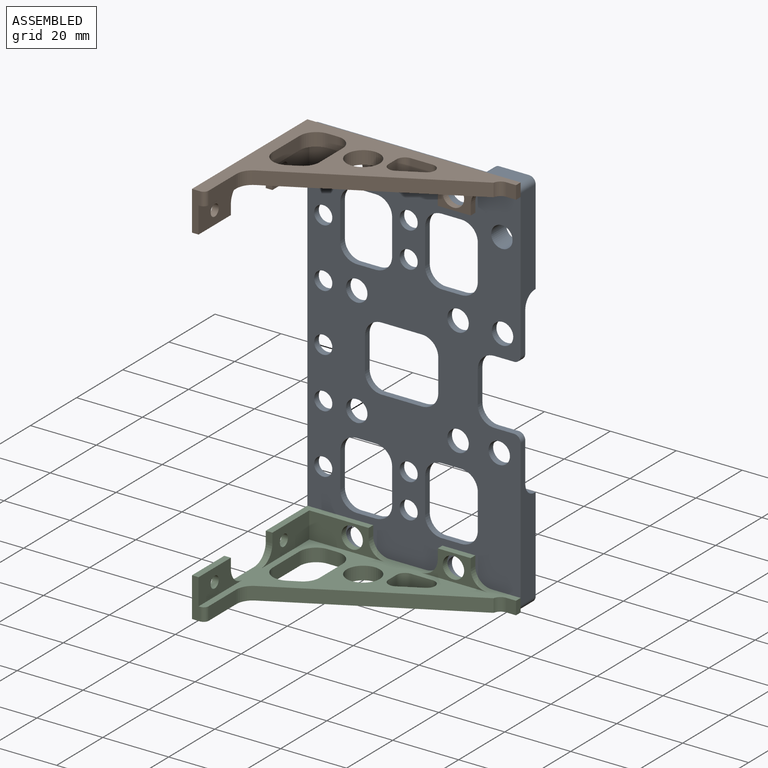
[diagram: assembled view]
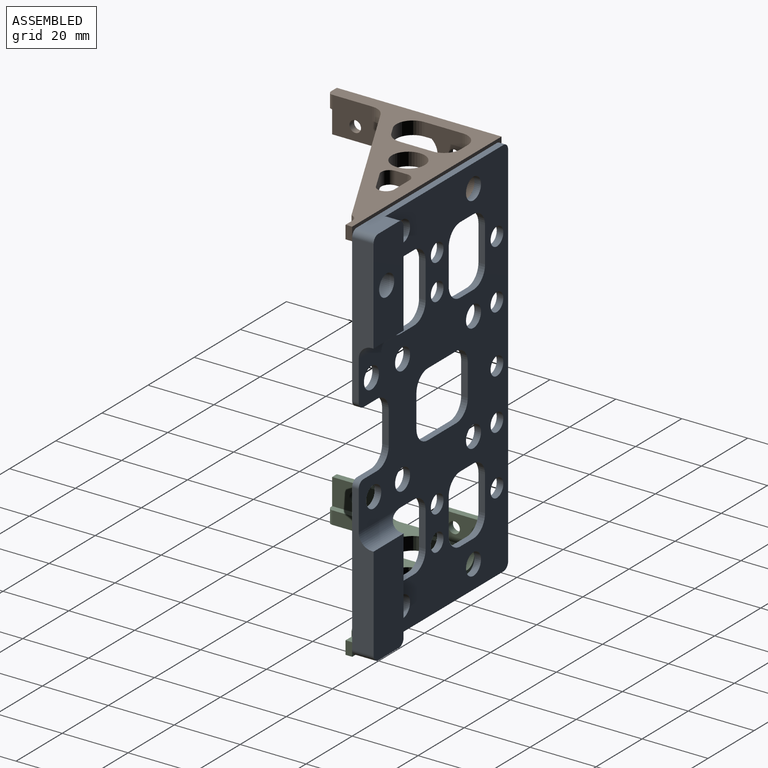
[diagram: assembled view, second angle]
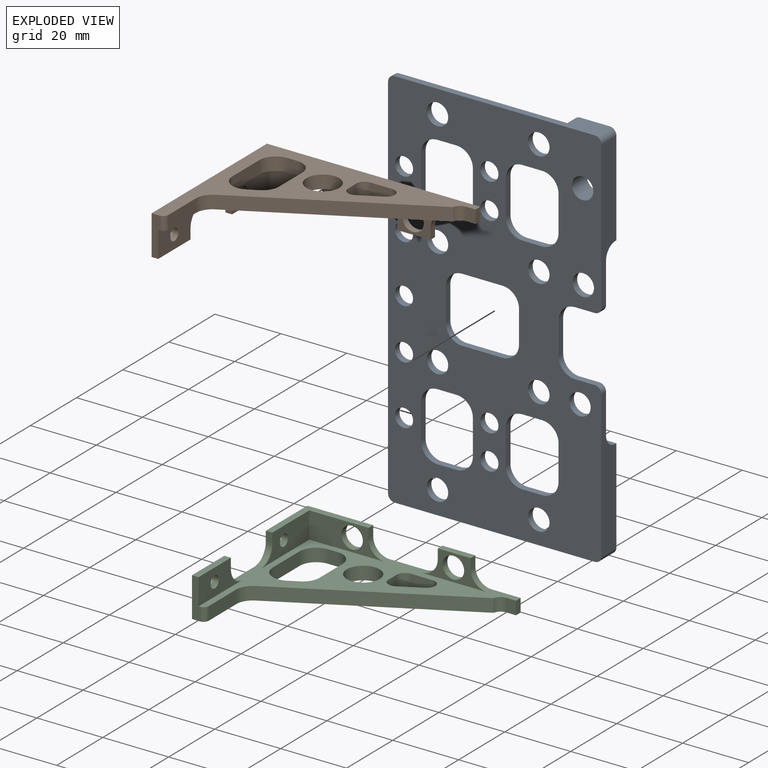
[diagram: exploded view]
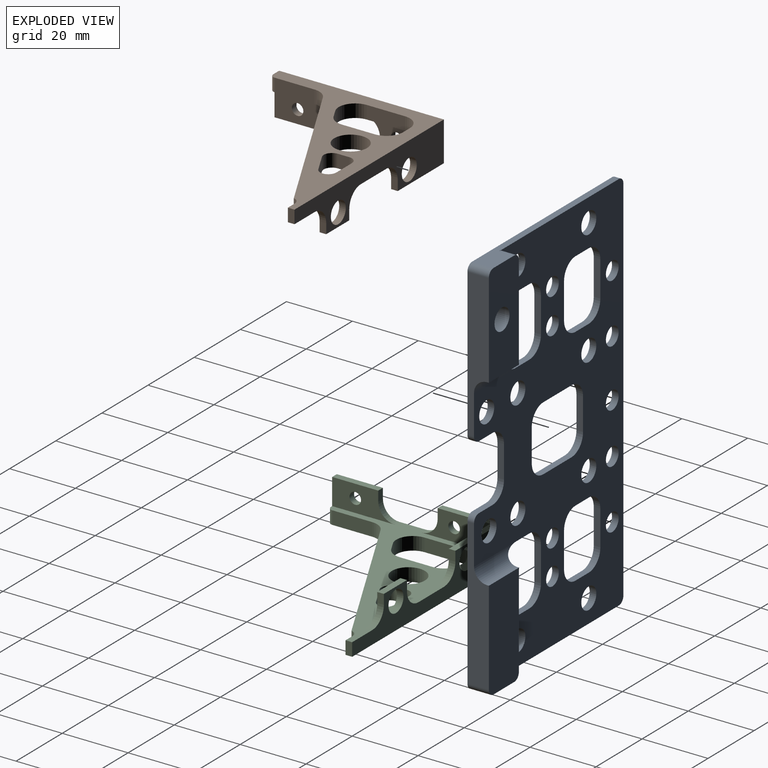
[diagram: exploded view, second angle]
ASSEMBLY  parts=3 mates=2
PART A: 88 faces, bbox 117x64.8x6.5 mm
  f0: plane 117x64.76mm, normal (0,0,1), area 4225.8mm2, adj f1,f2,f3,f4,f6,f7,f8,f9
  f1: plane 9.76x2mm, normal (0,-1,0), area 19.5mm2, adj f0,f51,f74,f75
  f2: plane 12.25x2mm, normal (-1,0,0), area 24.5mm2, adj f0,f51,f74,f77
  f3: plane 9.76x2mm, normal (0,1,0), area 19.5mm2, adj f0,f51,f76,f77
  f4: plane 15.91x5.97mm, normal (0,1,0), area 35.3mm2, adj f0,f5,f51,f79,f82
  f5: plane 28.59x6.5mm, normal (0,1,0), area 185.8mm2, adj f4,f51,f52,f53,f79,f83
  f6: plane 60.75x6.5mm, normal (-1,0,0), area 162mm2, adj f0,f51,f53,f81,f83,f84
  f7: plane 113x2mm, normal (0,-1,0), area 226mm2, adj f0,f51,f84,f85
  f8: plane 49.75x2mm, normal (1,0,0), area 99.5mm2, adj f0,f9,f51,f85
  f9: plane 11.01x6.5mm, normal (1,0,0), area 62.5mm2, adj f0,f8,f51,f55,f80,f86
  f10: plane 44.74x6.5mm, normal (0,1,0), area 222.2mm2, adj f0,f51,f54,f55,f78,f86,f87
  f11: plane 6.01x2mm, normal (-1,0,0), area 12mm2, adj f0,f51,f72,f87
  f12: plane 9.76x2mm, normal (0,1,0), area 19.5mm2, adj f0,f51,f65,f72
  f13: plane 10.59x2mm, normal (0,1,0), area 21.2mm2, adj f0,f51,f60,f63
  f14: plane 6x2mm, normal (1,0,0), area 12mm2, adj f0,f51,f60,f66
  f15: plane 27.59x6.5mm, normal (0,-1,0), area 145.3mm2, adj f0,f51,f53,f64,f66,f81
  f16: plane 5.75x2mm, normal (1,0,0), area 11.5mm2, adj f0,f51,f61,f67
  f17: plane 10.59x2mm, normal (0,-1,0), area 21.2mm2, adj f0,f51,f61,f62
  f18: plane 5.75x2mm, normal (-1,0,0), area 11.5mm2, adj f0,f51,f62,f70
  f19: plane 10.74x2mm, normal (0,-1,0), area 21.5mm2, adj f0,f51,f56,f59
  f20: plane 5.75x2mm, normal (-1,0,0), area 11.5mm2, adj f0,f51,f56,f68
  f21: plane 10.74x2mm, normal (0,1,0), area 21.5mm2, adj f0,f51,f68,f69
  f22: plane 6x2mm, normal (-1,0,0), area 12mm2, adj f0,f51,f57,f71
  f23: plane 10.74x2mm, normal (0,1,0), area 21.5mm2, adj f0,f51,f57,f58
  f24: plane 6x2mm, normal (1,0,0), area 12mm2, adj f0,f51,f58,f73
  f25: cylinder r=3.25mm len=6.5mm, axis (0,0,-1), area 40.8mm2, adj f0,f51
  f26: cylinder r=3.25mm len=6.5mm, axis (0,0,-1), area 40.8mm2, adj f0,f51
  f27: cylinder r=3.25mm len=6.5mm, axis (0,0,-1), area 40.8mm2, adj f0,f51
  f28: plane 12.25x2mm, normal (1,0,0), area 24.5mm2, adj f0,f51,f75,f76
  f29: cylinder r=3.25mm len=6.5mm, axis (0,0,-1), area 40.8mm2, adj f0,f51
  f30: cylinder r=3.25mm len=6.5mm, axis (0,0,-1), area 132.7mm2, adj f51,f55
  f31: cylinder r=3.25mm len=6.5mm, axis (0,0,-1), area 40.8mm2, adj f0,f51
  f32: cylinder r=3.25mm len=6.5mm, axis (0,0,-1), area 40.8mm2, adj f0,f51
  f33: cylinder r=2.75mm len=5.5mm, axis (0,0,-1), area 34.6mm2, adj f0,f51
  f34: cylinder r=2.75mm len=5.5mm, axis (0,0,-1), area 34.6mm2, adj f0,f51
  f35: cylinder r=2.75mm len=5.5mm, axis (0,0,-1), area 34.6mm2, adj f0,f51
  f36: cylinder r=2.75mm len=5.5mm, axis (0,0,-1), area 34.6mm2, adj f0,f51
  f37: cylinder r=2.75mm len=5.5mm, axis (0,0,-1), area 34.6mm2, adj f0,f51
  f38: cylinder r=3.25mm len=6.5mm, axis (0,0,-1), area 40.8mm2, adj f0,f51
  f39: cylinder r=3.25mm len=6.5mm, axis (0,0,-1), area 40.8mm2, adj f0,f51
  f40: cylinder r=3.25mm len=6.5mm, axis (0,0,-1), area 40.8mm2, adj f0,f51
  f41: plane 6x2mm, normal (1,0,0), area 12mm2, adj f0,f51,f65,f82
  f42: plane 6x2mm, normal (-1,0,0), area 12mm2, adj f0,f51,f63,f64
  f43: cylinder r=2.75mm len=5.5mm, axis (0,0,-1), area 34.6mm2, adj f0,f51
  f44: cylinder r=2.75mm len=5.5mm, axis (0,0,-1), area 34.6mm2, adj f0,f51
  f45: plane 10.59x2mm, normal (0,1,0), area 21.2mm2, adj f0,f51,f67,f70
  f46: plane 5.75x2mm, normal (1,0,0), area 11.5mm2, adj f0,f51,f59,f69
  f47: cylinder r=2.75mm len=5.5mm, axis (0,0,-1), area 34.6mm2, adj f0,f51
  f48: cylinder r=2.75mm len=5.5mm, axis (0,0,-1), area 34.6mm2, adj f0,f51
  f49: plane 27.74x6.5mm, normal (0,-1,0), area 146.3mm2, adj f0,f51,f55,f71,f73,f80
  f50: cylinder r=3.25mm len=6.5mm, axis (0,0,-1), area 40.8mm2, adj f0,f51
  f51: plane 117x64.76mm, normal (0,0,-1), area 5101.4mm2, adj f1,f2,f3,f4,f5,f6,f7,f8
  f52: plane 13.1x0.5mm, normal (1,0,0), area 6.6mm2, adj f5,f53,f64,f79
  f53: plane 30.59x13.1mm, normal (0,0,1), area 395.9mm2, adj f5,f6,f15,f52,f64,f81,f83
  f54: plane 13.11x0.5mm, normal (-1,0,0), area 6.6mm2, adj f10,f55,f73,f78
  f55: plane 30.74x13.11mm, normal (0,0,1), area 364.9mm2, adj f9,f10,f30,f49,f54,f73,f80,f86
  f56: cylinder r=5mm len=5mm, axis (0,0,-1), area 15.7mm2, adj f0,f19,f20,f51
  f57: cylinder r=5mm len=5mm, axis (0,0,1), area 15.7mm2, adj f0,f22,f23,f51
  f58: cylinder r=5mm len=5mm, axis (0,0,1), area 15.7mm2, adj f0,f23,f24,f51
  f59: cylinder r=5mm len=5mm, axis (0,0,-1), area 15.7mm2, adj f0,f19,f46,f51
  f60: cylinder r=5mm len=5mm, axis (0,0,-1), area 15.7mm2, adj f0,f13,f14,f51
  f61: cylinder r=5mm len=5mm, axis (0,0,-1), area 15.7mm2, adj f0,f16,f17,f51
  f62: cylinder r=5mm len=5mm, axis (0,0,1), area 15.7mm2, adj f0,f17,f18,f51
  f63: cylinder r=5mm len=5mm, axis (0,0,1), area 15.7mm2, adj f0,f13,f42,f51
  f64: cylinder r=5mm len=6.5mm, axis (0,0,-1), area 24.1mm2, adj f0,f15,f42,f51,f52,f53,f79
  f65: cylinder r=5mm len=5mm, axis (0,0,1), area 15.7mm2, adj f0,f12,f41,f51
  f66: cylinder r=5mm len=5mm, axis (0,0,1), area 15.7mm2, adj f0,f14,f15,f51
  f67: cylinder r=5mm len=5mm, axis (0,0,1), area 15.7mm2, adj f0,f16,f45,f51
  f68: cylinder r=5mm len=5mm, axis (0,0,1), area 15.7mm2, adj f0,f20,f21,f51
  f69: cylinder r=5mm len=5mm, axis (0,0,1), area 15.7mm2, adj f0,f21,f46,f51
  f70: cylinder r=5mm len=5mm, axis (0,0,-1), area 15.7mm2, adj f0,f18,f45,f51
  f71: cylinder r=5mm len=5mm, axis (0,0,-1), area 15.7mm2, adj f0,f22,f49,f51
  f72: cylinder r=5mm len=5mm, axis (0,0,-1), area 15.7mm2, adj f0,f11,f12,f51
  f73: cylinder r=5mm len=6.5mm, axis (0,0,-1), area 24.1mm2, adj f24,f49,f51,f54,f55,f78
  f74: cylinder r=5mm len=5mm, axis (0,0,1), area 15.7mm2, adj f0,f1,f2,f51
  f75: cylinder r=5mm len=5mm, axis (0,0,-1), area 15.7mm2, adj f0,f1,f28,f51
  f76: cylinder r=5mm len=5mm, axis (0,0,1), area 15.7mm2, adj f0,f3,f28,f51
  f77: cylinder r=5mm len=5mm, axis (0,0,-1), area 15.7mm2, adj f0,f2,f3,f51
  f78: cylinder r=4mm len=18.01mm, axis (0,-1,0), area 87.7mm2, adj f0,f10,f54,f73
  f79: cylinder r=4mm len=17.96mm, axis (0,1,0), area 87.7mm2, adj f0,f4,f5,f52,f64
  f80: cylinder r=2mm len=4.5mm, axis (0,0,-1), area 14.1mm2, adj f0,f9,f49,f55
  f81: cylinder r=2mm len=4.5mm, axis (0,0,1), area 14.1mm2, adj f0,f6,f15,f53
  f82: cylinder r=2mm len=2mm, axis (0,0,-1), area 6.3mm2, adj f0,f4,f41,f51
  f83: cylinder r=2mm len=6.5mm, axis (0,0,1), area 20.4mm2, adj f5,f6,f51,f53
  f84: cylinder r=2mm len=2mm, axis (0,0,1), area 6.3mm2, adj f0,f6,f7,f51
  f85: cylinder r=2mm len=2mm, axis (0,0,1), area 6.3mm2, adj f0,f7,f8,f51
  f86: cylinder r=2mm len=6.5mm, axis (0,0,1), area 20.4mm2, adj f9,f10,f51,f55
  f87: cylinder r=2mm len=2mm, axis (0,0,1), area 6.3mm2, adj f0,f10,f11,f51
PART B: 48 faces, bbox 64.8x50x12 mm
  f0: plane 64.75x50mm, normal (0,0,-1), area 674.6mm2, adj f1,f2,f3,f4,f5,f6,f7,f8
  f1: plane 10.02x4mm, normal (-1,0,0), area 40.1mm2, adj f0,f16,f35,f38
  f2: plane 4x3mm, normal (-0.47,0.88,0), area 13.6mm2, adj f0,f16,f35,f36
  f3: plane 11.62x4mm, normal (1,0,0), area 46.5mm2, adj f0,f16,f36,f37
  f4: plane 52.69x28.06mm, normal (0.47,-0.88,0), area 238.8mm2, adj f0,f16,f34,f39
  f5: plane 4x2.96mm, normal (0,-1,0), area 11.8mm2, adj f0,f6,f16,f39
  f6: plane 4x2mm, normal (1,0,0), area 8mm2, adj f0,f5,f7,f16
  f7: plane 64.75x12mm, normal (0,1,0), area 448.7mm2, adj f0,f6,f8,f16,f20,f21,f25,f27
  f8: plane 50x12mm, normal (-1,0,0), area 447.5mm2, adj f0,f7,f9,f16,f17,f21,f22,f24
  f9: plane 12x2.5mm, normal (0,-1,0), area 26mm2, adj f0,f8,f16,f23,f24,f43
  f10: plane 6.65x4mm, normal (-0.47,0.88,0), area 30.1mm2, adj f0,f16,f40,f41
  f11: plane 4x3.54mm, normal (1,0,0), area 14.2mm2, adj f0,f16,f41,f42
  f12: plane 4x3mm, normal (0,-1,0), area 12mm2, adj f0,f16,f37,f38
  f13: plane 12.02x4mm, normal (1,0,0), area 48.1mm2, adj f0,f16,f34,f43
  f14: plane 6.65x4mm, normal (0,-1,0), area 26.6mm2, adj f0,f16,f40,f42
  f15: cylinder r=5mm len=10mm, axis (0,0,-1), area 125.7mm2, adj f0,f16
  f16: plane 64.75x50mm, normal (0,0,1), area 844.6mm2, adj f1,f2,f3,f4,f5,f6,f7,f8
  f17: plane 3x2mm, normal (0,-1,0), area 6mm2, adj f8,f18,f21,f31
  f18: plane 21x8mm, normal (1,0,0), area 123.7mm2, adj f0,f17,f19,f21,f31,f47
  f19: plane 23x8mm, normal (0,-1,0), area 116.2mm2, adj f0,f18,f20,f21,f30,f45
  f20: plane 3x2mm, normal (1,0,0), area 6mm2, adj f7,f19,f21,f30
  f21: plane 20x18mm, normal (0,0,-1), area 72mm2, adj f7,f8,f17,f18,f19,f20
  f22: plane 3x2mm, normal (0,1,0), area 6mm2, adj f8,f23,f24,f29
  f23: plane 19x8mm, normal (1,0,0), area 107.7mm2, adj f0,f9,f22,f24,f29,f46
  f24: plane 14x2mm, normal (0,0,-1), area 28mm2, adj f8,f9,f22,f23
  f25: plane 3x2mm, normal (-1,0,0), area 6mm2, adj f7,f26,f28,f33
  f26: plane 20x8mm, normal (0,-1,0), area 57.5mm2, adj f0,f25,f27,f28,f32,f33,f44
  f27: plane 3x2mm, normal (1,0,0), area 6mm2, adj f7,f26,f28,f32
  f28: plane 10x2mm, normal (0,0,-1), area 20mm2, adj f7,f25,f26,f27
  f29: cylinder r=5mm len=5mm, axis (-1,0,0), area 15.7mm2, adj f0,f8,f22,f23
  f30: cylinder r=5mm len=5mm, axis (0,1,0), area 15.7mm2, adj f0,f7,f19,f20
  f31: cylinder r=5mm len=5mm, axis (1,0,0), area 15.7mm2, adj f0,f8,f17,f18
  f32: cylinder r=5mm len=5mm, axis (0,1,0), area 15.7mm2, adj f0,f7,f26,f27
  f33: cylinder r=5mm len=5mm, axis (0,-1,0), area 15.7mm2, adj f0,f7,f25,f26
  f34: cylinder r=5mm len=4.41mm, axis (0,0,1), area 21.6mm2, adj f0,f4,f13,f16
  f35: cylinder r=5mm len=4.41mm, axis (0,0,-1), area 21.6mm2, adj f0,f1,f2,f16
  f36: cylinder r=5mm len=7.35mm, axis (0,0,1), area 41.2mm2, adj f0,f2,f3,f16
  f37: cylinder r=5mm len=5mm, axis (0,0,-1), area 31.4mm2, adj f0,f3,f12,f16
  f38: cylinder r=5mm len=5mm, axis (0,0,1), area 31.4mm2, adj f0,f1,f12,f16
  f39: cylinder r=2.5mm len=4mm, axis (0,0,1), area 13.7mm2, adj f0,f4,f5,f16
  f40: cylinder r=2.5mm len=4.71mm, axis (0,0,-1), area 26.5mm2, adj f0,f10,f14,f16
  f41: cylinder r=2.5mm len=4mm, axis (0,0,1), area 20.6mm2, adj f0,f10,f11,f16
  f42: cylinder r=2.5mm len=4mm, axis (0,0,-1), area 15.7mm2, adj f0,f11,f14,f16
  f43: cylinder r=1.5mm len=4mm, axis (0,0,-1), area 9.4mm2, adj f0,f9,f13,f16
  f44: cylinder r=3.25mm len=6.5mm, axis (0,1,0), area 40.8mm2, adj f7,f26
  f45: cylinder r=3.25mm len=6.5mm, axis (0,1,0), area 40.8mm2, adj f7,f19
  f46: cylinder r=1.75mm len=3.5mm, axis (-1,0,0), area 22mm2, adj f8,f23
  f47: cylinder r=1.75mm len=3.5mm, axis (-1,0,0), area 22mm2, adj f8,f18
PART C: 48 faces, bbox 64.8x50x12 mm
  f0: plane 64.75x50mm, normal (0,0,1), area 674.6mm2, adj f1,f2,f3,f4,f5,f6,f7,f8
  f1: plane 10.02x4mm, normal (-1,0,0), area 40.1mm2, adj f0,f16,f35,f38
  f2: plane 4x3mm, normal (-0.47,0.88,0), area 13.6mm2, adj f0,f16,f35,f36
  f3: plane 11.62x4mm, normal (1,0,0), area 46.5mm2, adj f0,f16,f36,f37
  f4: plane 52.69x28.06mm, normal (0.47,-0.88,0), area 238.8mm2, adj f0,f16,f34,f39
  f5: plane 4x2.96mm, normal (0,-1,0), area 11.8mm2, adj f0,f6,f16,f39
  f6: plane 4x2mm, normal (1,0,0), area 8mm2, adj f0,f5,f7,f16
  f7: plane 64.75x12mm, normal (0,1,0), area 448.7mm2, adj f0,f6,f8,f16,f20,f21,f25,f27
  f8: plane 50x12mm, normal (-1,0,0), area 447.5mm2, adj f0,f7,f9,f16,f17,f21,f22,f24
  f9: plane 12x2.5mm, normal (0,-1,0), area 26mm2, adj f0,f8,f16,f23,f24,f43
  f10: plane 6.65x4mm, normal (-0.47,0.88,0), area 30.1mm2, adj f0,f16,f40,f41
  f11: plane 4x3.54mm, normal (1,0,0), area 14.2mm2, adj f0,f16,f41,f42
  f12: plane 4x3mm, normal (0,-1,0), area 12mm2, adj f0,f16,f37,f38
  f13: plane 12.02x4mm, normal (1,0,0), area 48.1mm2, adj f0,f16,f34,f43
  f14: plane 6.65x4mm, normal (0,-1,0), area 26.6mm2, adj f0,f16,f40,f42
  f15: cylinder r=5mm len=10mm, axis (0,0,-1), area 125.7mm2, adj f0,f16
  f16: plane 64.75x50mm, normal (0,0,-1), area 844.6mm2, adj f1,f2,f3,f4,f5,f6,f7,f8
  f17: plane 3x2mm, normal (0,-1,0), area 6mm2, adj f8,f18,f21,f32
  f18: plane 21x8mm, normal (1,0,0), area 123.7mm2, adj f0,f17,f19,f21,f32,f47
  f19: plane 23x8mm, normal (0,-1,0), area 116.2mm2, adj f0,f18,f20,f21,f33,f45
  f20: plane 3x2mm, normal (1,0,0), area 6mm2, adj f7,f19,f21,f33
  f21: plane 20x18mm, normal (0,0,1), area 72mm2, adj f7,f8,f17,f18,f19,f20
  f22: plane 3x2mm, normal (0,1,0), area 6mm2, adj f8,f23,f24,f31
  f23: plane 19x8mm, normal (1,0,0), area 107.7mm2, adj f0,f9,f22,f24,f31,f46
  f24: plane 14x2mm, normal (0,0,1), area 28mm2, adj f8,f9,f22,f23
  f25: plane 3x2mm, normal (-1,0,0), area 6mm2, adj f7,f26,f28,f29
  f26: plane 20x8mm, normal (0,-1,0), area 57.5mm2, adj f0,f25,f27,f28,f29,f30,f44
  f27: plane 3x2mm, normal (1,0,0), area 6mm2, adj f7,f26,f28,f30
  f28: plane 10x2mm, normal (0,0,1), area 20mm2, adj f7,f25,f26,f27
  f29: cylinder r=5mm len=5mm, axis (0,1,0), area 15.7mm2, adj f0,f7,f25,f26
  f30: cylinder r=5mm len=5mm, axis (0,-1,0), area 15.7mm2, adj f0,f7,f26,f27
  f31: cylinder r=5mm len=5mm, axis (1,0,0), area 15.7mm2, adj f0,f8,f22,f23
  f32: cylinder r=5mm len=5mm, axis (-1,0,0), area 15.7mm2, adj f0,f8,f17,f18
  f33: cylinder r=5mm len=5mm, axis (0,-1,0), area 15.7mm2, adj f0,f7,f19,f20
  f34: cylinder r=5mm len=4.41mm, axis (0,0,1), area 21.6mm2, adj f0,f4,f13,f16
  f35: cylinder r=5mm len=4.41mm, axis (0,0,-1), area 21.6mm2, adj f0,f1,f2,f16
  f36: cylinder r=5mm len=7.35mm, axis (0,0,1), area 41.2mm2, adj f0,f2,f3,f16
  f37: cylinder r=5mm len=5mm, axis (0,0,-1), area 31.4mm2, adj f0,f3,f12,f16
  f38: cylinder r=5mm len=5mm, axis (0,0,1), area 31.4mm2, adj f0,f1,f12,f16
  f39: cylinder r=2.5mm len=4mm, axis (0,0,1), area 13.7mm2, adj f0,f4,f5,f16
  f40: cylinder r=2.5mm len=4.71mm, axis (0,0,-1), area 26.5mm2, adj f0,f10,f14,f16
  f41: cylinder r=2.5mm len=4mm, axis (0,0,1), area 20.6mm2, adj f0,f10,f11,f16
  f42: cylinder r=2.5mm len=4mm, axis (0,0,-1), area 15.7mm2, adj f0,f11,f14,f16
  f43: cylinder r=1.5mm len=4mm, axis (0,0,-1), area 9.4mm2, adj f0,f9,f13,f16
  f44: cylinder r=3.25mm len=6.5mm, axis (0,1,0), area 40.8mm2, adj f7,f26
  f45: cylinder r=3.25mm len=6.5mm, axis (0,1,0), area 40.8mm2, adj f7,f19
  f46: cylinder r=1.75mm len=3.5mm, axis (-1,0,0), area 22mm2, adj f8,f23
  f47: cylinder r=1.75mm len=3.5mm, axis (-1,0,0), area 22mm2, adj f8,f18
PLACE A rot(axis=(-0.58,-0.58,-0.58),120deg) t=(-67.36,15.95,101.91)mm
PLACE B t=(-71.06,0.84,162.59)mm
PLACE C t=(-71.06,0.84,48.59)mm
MATE parallel C.f44 <-> A.f39  axis (0,1,0) through (-53.35,15.95,56.59)mm
MATE parallel B.f44 <-> A.f31  axis (0,1,0) through (-53.35,15.95,158.59)mm
